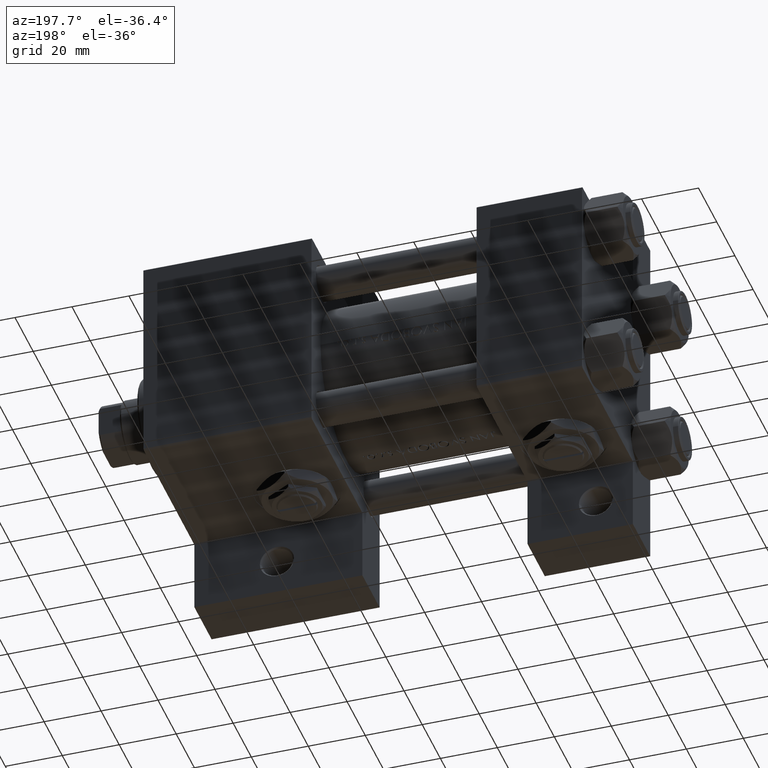
[diagram: clean part render]
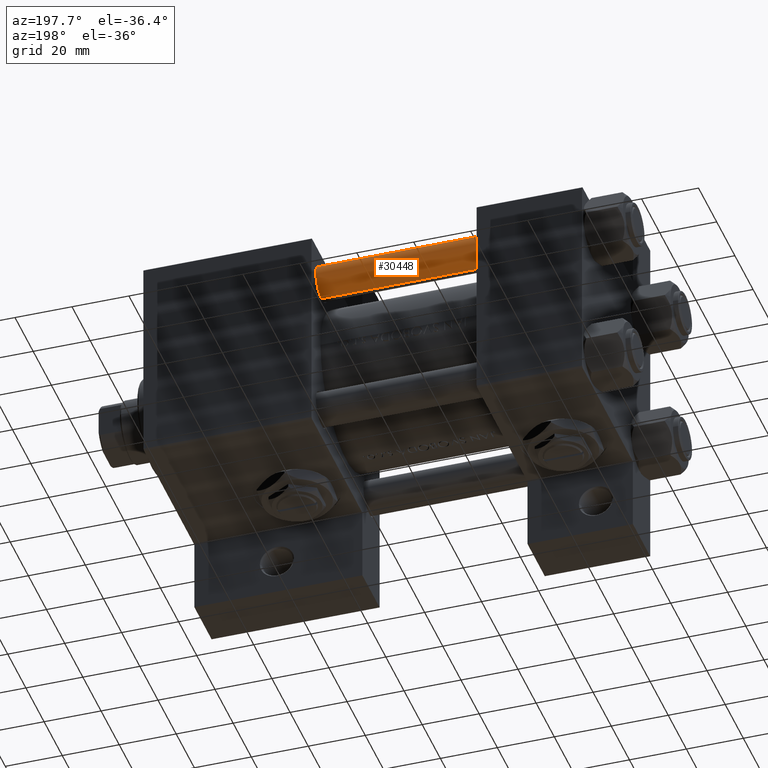
[diagram: same view with one face highlighted and labeled with its STEP entity id]
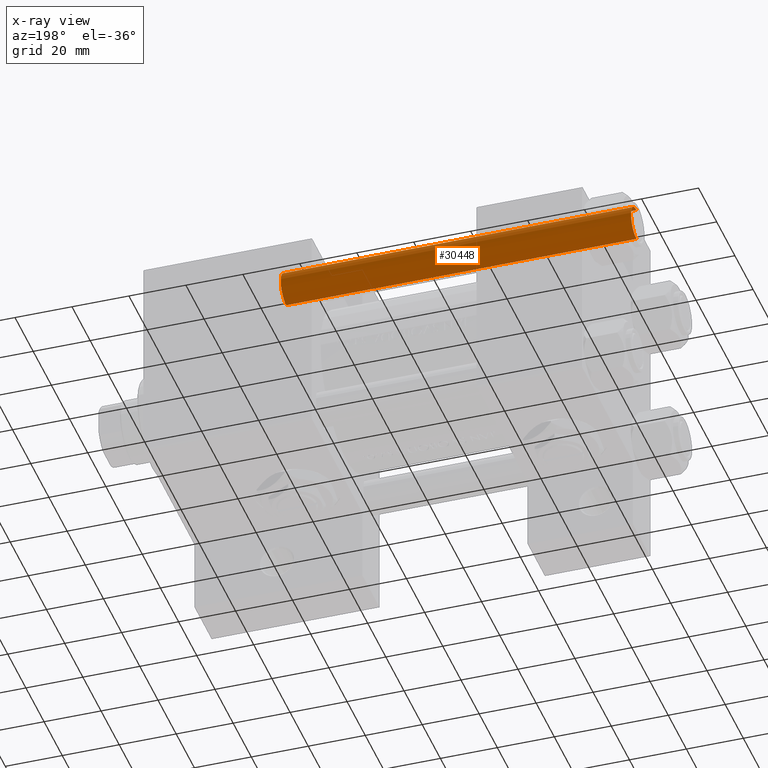
[diagram: x-ray of the same camera — body ghosted, the highlighted face saturated]
A machine part, auxiliary view. The second image highlights one B-rep face of the part: STEP entity #30448.
The next image is the same camera in x-ray: the body ghosted, the highlighted face saturated — about 0% of this face is hidden behind the body in this view.
In plain terms, the highlighted cylindrical surface (edge-blend (fillet) strip) has radius 6 mm, axis along (-1, -0, -0).
Its self-contained STEP definition (entity closure, byte-faithful):
#29 = DIRECTION ( 'NONE',  ( -1.000000000000000000, 0.000000000000000000, 0.000000000000000000 ) ) ;
#2142 = VERTEX_POINT ( 'NONE', #8831 ) ;
#2587 = DIRECTION ( 'NONE',  ( -0.000000000000000000, -0.000000000000000000, -1.000000000000000000 ) ) ;
#2823 = DIRECTION ( 'NONE',  ( -0.000000000000000000, -0.000000000000000000, 1.000000000000000000 ) ) ;
#3326 = VECTOR ( 'NONE', #14644, 1000.000000000000000 ) ;
#3775 = CARTESIAN_POINT ( 'NONE',  ( 0.000000000000000000, 0.000000000000000000, 123.5000000000000426 ) ) ;
#8831 = CARTESIAN_POINT ( 'NONE',  ( 6.000000000000000888, 7.347880794884120722E-16, 123.5000000000000426 ) ) ;
#10393 = CARTESIAN_POINT ( 'NONE',  ( 6.000000000000000888, 7.347880794884120722E-16, 124.0000000000000000 ) ) ;
#10593 = LINE ( 'NONE', #37148, #48316 ) ;
#11766 = ORIENTED_EDGE ( 'NONE', *, *, #45395, .F. ) ;
#12071 = EDGE_LOOP ( 'NONE', ( #31854, #36038, #12127, #11766 ) ) ;
#12127 = ORIENTED_EDGE ( 'NONE', *, *, #49292, .T. ) ;
#13650 = EDGE_CURVE ( 'NONE', #37527, #2142, #36899, .T. ) ;
#14644 = DIRECTION ( 'NONE',  ( -0.000000000000000000, -0.000000000000000000, -1.000000000000000000 ) ) ;
#14819 = CIRCLE ( 'NONE', #42846, 6.000000000000000888 ) ;
#15388 = VERTEX_POINT ( 'NONE', #36951 ) ;
#25535 = AXIS2_PLACEMENT_3D ( 'NONE', #30319, #45659, #29 ) ;
#26094 = DIRECTION ( 'NONE',  ( 1.000000000000000000, 0.000000000000000000, 0.000000000000000000 ) ) ;
#30319 = CARTESIAN_POINT ( 'NONE',  ( 0.000000000000000000, 0.000000000000000000, 124.0000000000000000 ) ) ;
#30448 = ADVANCED_FACE ( 'NONE', ( #34333 ), #42376, .T. ) ;
#31854 = ORIENTED_EDGE ( 'NONE', *, *, #13650, .T. ) ;
#34333 = FACE_OUTER_BOUND ( 'NONE', #12071, .T. ) ;
#36038 = ORIENTED_EDGE ( 'NONE', *, *, #36964, .T. ) ;
#36899 = CIRCLE ( 'NONE', #39308, 6.000000000000000888 ) ;
#36951 = CARTESIAN_POINT ( 'NONE',  ( -6.000000000000000888, 0.000000000000000000, 0.4999999999999865663 ) ) ;
#36964 = EDGE_CURVE ( 'NONE', #2142, #40013, #37954, .T. ) ;
#37148 = CARTESIAN_POINT ( 'NONE',  ( -6.000000000000000888, 0.000000000000000000, 124.0000000000000000 ) ) ;
#37527 = VERTEX_POINT ( 'NONE', #40607 ) ;
#37954 = LINE ( 'NONE', #10393, #3326 ) ;
#39308 = AXIS2_PLACEMENT_3D ( 'NONE', #3775, #45617, #49613 ) ;
#40013 = VERTEX_POINT ( 'NONE', #49473 ) ;
#40607 = CARTESIAN_POINT ( 'NONE',  ( -6.000000000000000888, 0.000000000000000000, 123.5000000000000426 ) ) ;
#42376 = CYLINDRICAL_SURFACE ( 'NONE', #25535, 6.000000000000000888 ) ;
#42846 = AXIS2_PLACEMENT_3D ( 'NONE', #48683, #2823, #26094 ) ;
#45395 = EDGE_CURVE ( 'NONE', #37527, #15388, #10593, .T. ) ;
#45617 = DIRECTION ( 'NONE',  ( 0.000000000000000000, 0.000000000000000000, -1.000000000000000000 ) ) ;
#45659 = DIRECTION ( 'NONE',  ( -0.000000000000000000, -0.000000000000000000, -1.000000000000000000 ) ) ;
#48316 = VECTOR ( 'NONE', #2587, 1000.000000000000000 ) ;
#48683 = CARTESIAN_POINT ( 'NONE',  ( 0.000000000000000000, 0.000000000000000000, 0.4999999999999865663 ) ) ;
#49292 = EDGE_CURVE ( 'NONE', #40013, #15388, #14819, .T. ) ;
#49473 = CARTESIAN_POINT ( 'NONE',  ( 6.000000000000000888, 7.347880794884120722E-16, 0.4999999999999865663 ) ) ;
#49613 = DIRECTION ( 'NONE',  ( 1.000000000000000000, 0.000000000000000000, 0.000000000000000000 ) ) ;